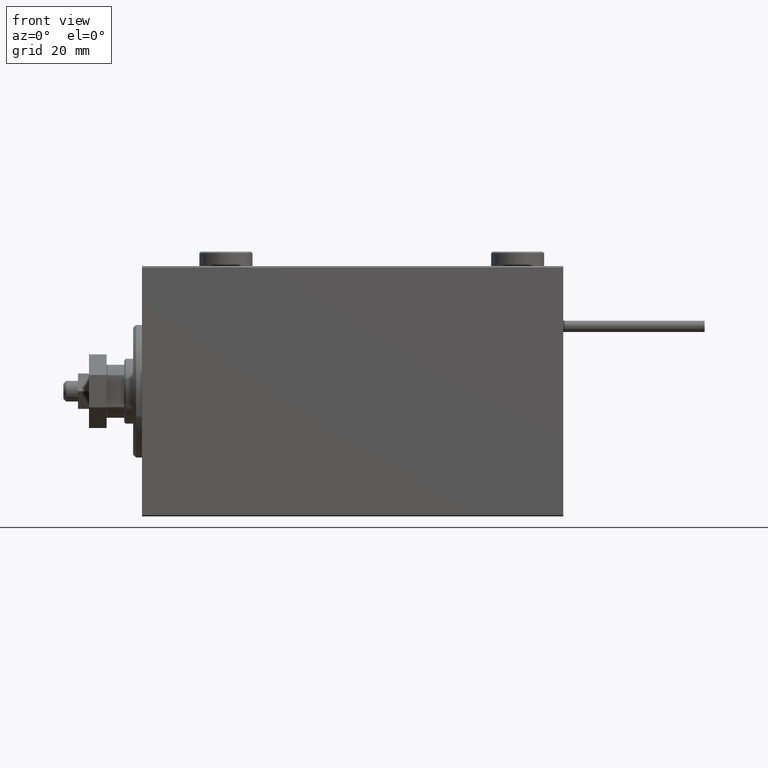
[diagram: clean part render]
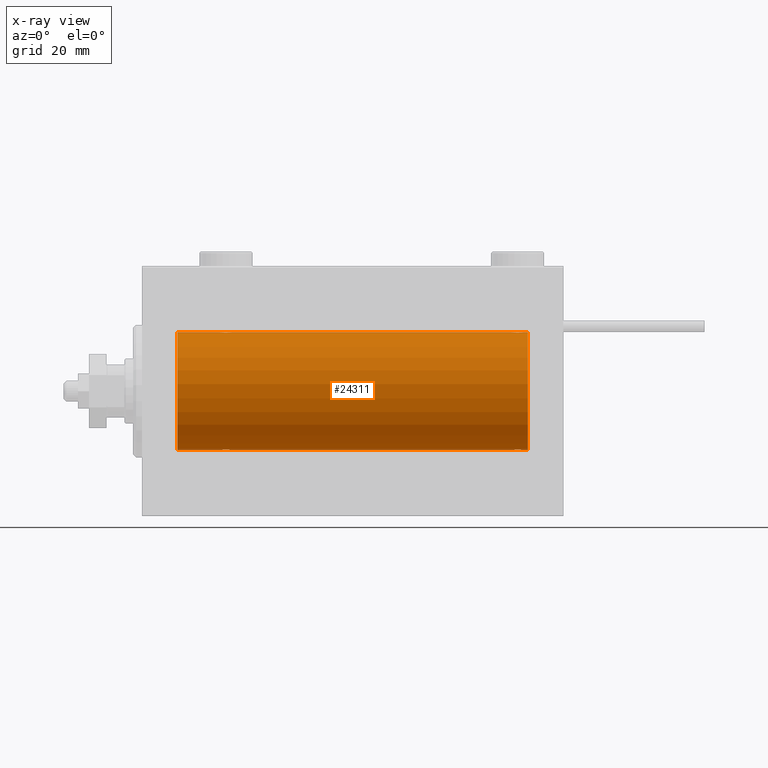
[diagram: x-ray — body ghosted, one internal face saturated and labeled with its STEP entity id]
A machine part, front view, then the same camera in x-ray: the body is ghosted and one INTERNAL B-rep face — a face not visible from any outside direction — is saturated and labeled: STEP entity #24311.
In plain terms, the highlighted cylindrical surface (partial cylindrical patch) has radius 20 mm, axis along (-1, -0, -0).
Its self-contained STEP definition (entity closure, byte-faithful):
#229 = CARTESIAN_POINT ( 'NONE',  ( 128.1463067392464552, -1.897222639860601801, -19.90987429971496425 ) ) ;
#505 = CARTESIAN_POINT ( 'NONE',  ( 129.5000000000000000, 2.449293582762473501E-15, -20.00000000000000000 ) ) ;
#914 = CARTESIAN_POINT ( 'NONE',  ( 27.98351467081095123, -1.936551476643008529, -19.90603968831098314 ) ) ;
#1055 = LINE ( 'NONE', #29190, #49886 ) ;
#1176 = CARTESIAN_POINT ( 'NONE',  ( 28.23922743968432414, -1.987205673487811630, -19.90104673894211018 ) ) ;
#1274 = CARTESIAN_POINT ( 'NONE',  ( 126.6142092332926978, -1.797933656607922259, -19.91908554465557657 ) ) ;
#2151 = DIRECTION ( 'NONE',  ( -1.000000000000000000, -0.000000000000000000, -0.000000000000000000 ) ) ;
#2357 = CARTESIAN_POINT ( 'NONE',  ( 27.61170562792909777, -1.796691196322324213, 19.91919800395357498 ) ) ;
#2896 = CARTESIAN_POINT ( 'NONE',  ( 126.1769333108053388, -1.505486175075782196, 19.94347168299868045 ) ) ;
#3102 = ORIENTED_EDGE ( 'NONE', *, *, #35558, .T. ) ;
#4055 = CARTESIAN_POINT ( 'NONE',  ( 30.24825913460018256, -1.005710574260840096, -19.97614991974273835 ) ) ;
#4148 = CARTESIAN_POINT ( 'NONE',  ( 127.3694112828916758, -2.000100592782560582, -19.89973863218036243 ) ) ;
#4415 = CARTESIAN_POINT ( 'NONE',  ( 125.7531302369692696, -1.008108445278684595, -19.97602680192585822 ) ) ;
#4680 = CARTESIAN_POINT ( 'NONE',  ( 126.1790309315271088, -1.507328959728501783, -19.94333197382385592 ) ) ;
#4980 = ORIENTED_EDGE ( 'NONE', *, *, #50105, .T. ) ;
#5168 = ORIENTED_EDGE ( 'NONE', *, *, #30195, .T. ) ;
#5185 = CARTESIAN_POINT ( 'NONE',  ( 129.4475506288250983, -0.5243189001515025094, -19.99457699142850231 ) ) ;
#5392 = EDGE_CURVE ( 'NONE', #6117, #34077, #34350, .T. ) ;
#5667 = VECTOR ( 'NONE', #2151, 1000.000000000000000 ) ;
#5741 = B_SPLINE_CURVE_WITH_KNOTS ( 'NONE', 3,
 ( #46424, #42509, #22707, #38613, #49561, #2896, #29753, #49817, #26101, #42000, #50588, #14880, #6298, #45644, #9931, #20062, #19811, #7830, #19553, #26882, #15897, #27633, #43788, #35203, #46932, #11720 ),
 .UNSPECIFIED., .F., .F.,
 ( 4, 2, 2, 2, 2, 2, 2, 2, 2, 2, 2, 2, 4 ),
 ( 0.006256819553329832743, 0.007038738568778792407, 0.007820657584227751202, 0.008211617091952231468, 0.008602576599676711733, 0.008993536107401190263, 0.009384495615125668794, 0.009775455122850149059, 0.01016641463057462759, 0.01055737413829910612, 0.01094833364602358639, 0.01173025266147260243, 0.01251217167692161847 ),
 .UNSPECIFIED. ) ;
#5993 = EDGE_CURVE ( 'NONE', #21122, #6646, #34576, .T. ) ;
#6006 = CARTESIAN_POINT ( 'NONE',  ( 27.49693443660398273, -1.735203193119900344, 19.92471783160911158 ) ) ;
#6117 = VERTEX_POINT ( 'NONE', #29924 ) ;
#6190 = VECTOR ( 'NONE', #50602, 1000.000000000000000 ) ;
#6298 = CARTESIAN_POINT ( 'NONE',  ( 127.3663480385754667, -1.999898234284065657, 19.89975896996866211 ) ) ;
#6646 = VERTEX_POINT ( 'NONE', #19058 ) ;
#7830 = CARTESIAN_POINT ( 'NONE',  ( 128.3857907667073448, -1.797933656607917152, 19.91908554465558367 ) ) ;
#7967 = CARTESIAN_POINT ( 'NONE',  ( 27.28194580527850022, -1.591668229360200026, -19.93669678979812687 ) ) ;
#8221 = CARTESIAN_POINT ( 'NONE',  ( 28.76358144091414815, -1.986835489085816198, -19.90108393514801222 ) ) ;
#8310 = CARTESIAN_POINT ( 'NONE',  ( 126.8565147126695933, -1.898187925611344085, -19.90978194174746818 ) ) ;
#8456 = B_SPLINE_CURVE_WITH_KNOTS ( 'NONE', 3,
 ( #18771, #41706, #46642, #34415, #26853, #22418, #18251, #6006, #2357, #34153, #41970, #38077, #33901, #10685, #26071, #14332, #26335, #14600, #38324, #14074, #38586, #18512, #22943, #30235, #34674, #38844 ),
 .UNSPECIFIED., .F., .F.,
 ( 4, 2, 2, 2, 2, 2, 2, 2, 2, 2, 2, 2, 4 ),
 ( 0.006256819553329818866, 0.007038738568778795009, 0.007820657584227770284, 0.008211617091952255754, 0.008602576599676739488, 0.008993536107401223223, 0.009384495615125706958, 0.009775455122850190692, 0.01016641463057467443, 0.01055737413829915816, 0.01094833364602364190, 0.01173025266147261110, 0.01251217167692157857 ),
 .UNSPECIFIED. ) ;
#8727 = EDGE_CURVE ( 'NONE', #6117, #36204, #5741, .T. ) ;
#9092 = CARTESIAN_POINT ( 'NONE',  ( 127.6336519614245049, -1.999898234284069876, -19.89975896996866211 ) ) ;
#9818 = ORIENTED_EDGE ( 'NONE', *, *, #17673, .F. ) ;
#9931 = CARTESIAN_POINT ( 'NONE',  ( 127.7607725603157007, -1.987205673487809854, 19.90104673894210308 ) ) ;
#9971 = VERTEX_POINT ( 'NONE', #34149 ) ;
#10685 = CARTESIAN_POINT ( 'NONE',  ( 28.63058871710834552, -2.000100592782559250, 19.89973863218036598 ) ) ;
#11720 = CARTESIAN_POINT ( 'NONE',  ( 129.5000000000000000, 6.438096668033870730E-15, 20.00000000000000000 ) ) ;
#11975 = DIRECTION ( 'NONE',  ( -1.000000000000000000, -0.000000000000000000, -0.000000000000000000 ) ) ;
#12640 = CARTESIAN_POINT ( 'NONE',  ( 26.50000000000000355, -6.257798774011376898E-15, -20.00000000000000000 ) ) ;
#12740 = CARTESIAN_POINT ( 'NONE',  ( 129.0994152488403302, -1.228758402364245494, -19.96307487248085266 ) ) ;
#13161 = CARTESIAN_POINT ( 'NONE',  ( 27.61420923329272981, -1.797933656607920039, -19.91908554465558367 ) ) ;
#13356 = EDGE_CURVE ( 'NONE', #6646, #27483, #36847, .T. ) ;
#13473 = CARTESIAN_POINT ( 'NONE',  ( 26.50000000000000355, -1.552596590610734385E-23, 20.00000000000000000 ) ) ;
#14074 = CARTESIAN_POINT ( 'NONE',  ( 29.71805419472152110, -1.591668229360197806, 19.93669678979812687 ) ) ;
#14236 = AXIS2_PLACEMENT_3D ( 'NONE', #17933, #14538, #26274 ) ;
#14332 = CARTESIAN_POINT ( 'NONE',  ( 29.01648532918905232, -1.936551476643010528, 19.90603968831098314 ) ) ;
#14535 = CARTESIAN_POINT ( 'NONE',  ( 131.0000000000000000, 0.000000000000000000, 20.00000000000000000 ) ) ;
#14538 = DIRECTION ( 'NONE',  ( -1.000000000000000000, -0.000000000000000000, -0.000000000000000000 ) ) ;
#14600 = CARTESIAN_POINT ( 'NONE',  ( 29.38579076670728440, -1.797933656607920261, 19.91908554465558367 ) ) ;
#14880 = CARTESIAN_POINT ( 'NONE',  ( 127.2364185590859051, -1.986835489085821527, 19.90108393514801932 ) ) ;
#15888 = CARTESIAN_POINT ( 'NONE',  ( 131.0000000000000000, 2.449293598294706513E-15, -20.00000000000000000 ) ) ;
#15897 = CARTESIAN_POINT ( 'NONE',  ( 128.8209690684728912, -1.507328959728495121, 19.94333197382385592 ) ) ;
#16039 = CARTESIAN_POINT ( 'NONE',  ( 29.01923512135277150, -1.935816449315127308, -19.90611141657401362 ) ) ;
#16301 = CARTESIAN_POINT ( 'NONE',  ( 30.50000000000000000, -0.2610801504281901053, -20.00000000000000000 ) ) ;
#16401 = CARTESIAN_POINT ( 'NONE',  ( 128.7202894579446593, -1.589957321664221324, -19.93683391378736403 ) ) ;
#16558 = CARTESIAN_POINT ( 'NONE',  ( 26.55320515808203297, -0.5270924491156746550, -19.99450181871975829 ) ) ;
#17076 = CARTESIAN_POINT ( 'NONE',  ( 27.17903093152711591, -1.507328959728495787, -19.94333197382386302 ) ) ;
#17174 = CARTESIAN_POINT ( 'NONE',  ( 125.5532051580820223, -0.5270924491156693259, -19.99450181871975474 ) ) ;
#17262 = DIRECTION ( 'NONE',  ( -1.000000000000000000, 0.000000000000000000, 0.000000000000000000 ) ) ;
#17673 = EDGE_CURVE ( 'NONE', #27399, #31109, #1055, .T. ) ;
#17933 = CARTESIAN_POINT ( 'NONE',  ( 131.0000000000000000, 0.000000000000000000, 0.000000000000000000 ) ) ;
#18251 = CARTESIAN_POINT ( 'NONE',  ( 27.27971054205535495, -1.589957321664213552, 19.93683391378736047 ) ) ;
#18512 = CARTESIAN_POINT ( 'NONE',  ( 30.09774691554730808, -1.230936344679279593, 19.96293863536309487 ) ) ;
#18525 = EDGE_LOOP ( 'NONE', ( #39358, #39978, #33164, #50762, #42488, #4980, #5168, #9818, #3102, #51502, #48575, #23788 ) ) ;
#18771 = CARTESIAN_POINT ( 'NONE',  ( 26.50000000000000355, -1.552596590610734385E-23, 20.00000000000000000 ) ) ;
#19058 = CARTESIAN_POINT ( 'NONE',  ( 125.5000000000000000, -8.073198165226647480E-15, -20.00000000000000000 ) ) ;
#19553 = CARTESIAN_POINT ( 'NONE',  ( 128.5006721913924252, -1.736582545981380177, 19.92459705242980661 ) ) ;
#19811 = CARTESIAN_POINT ( 'NONE',  ( 128.1434852873304351, -1.898187925611338978, 19.90978194174746818 ) ) ;
#20062 = CARTESIAN_POINT ( 'NONE',  ( 128.0164853291890950, -1.936551476643003200, 19.90603968831099024 ) ) ;
#20305 = CARTESIAN_POINT ( 'NONE',  ( 125.5000000000000000, -8.073198165226647480E-15, -20.00000000000000000 ) ) ;
#21080 = CARTESIAN_POINT ( 'NONE',  ( 126.4993278086076174, -1.736582545981386394, -19.92459705242980661 ) ) ;
#21122 = VERTEX_POINT ( 'NONE', #43833 ) ;
#21934 = DIRECTION ( 'NONE',  ( 0.000000000000000000, 0.000000000000000000, 1.000000000000000000 ) ) ;
#22418 = CARTESIAN_POINT ( 'NONE',  ( 27.17693331080529973, -1.505486175075776645, 19.94347168299866979 ) ) ;
#22707 = CARTESIAN_POINT ( 'NONE',  ( 125.5524493711749301, -0.5243189001515030645, 19.99457699142850231 ) ) ;
#22839 = DIRECTION ( 'NONE',  ( -1.000000000000000000, 0.000000000000000000, 0.000000000000000000 ) ) ;
#22943 = CARTESIAN_POINT ( 'NONE',  ( 30.24686976303072328, -1.008108445278688148, 19.97602680192586533 ) ) ;
#23788 = ORIENTED_EDGE ( 'NONE', *, *, #37445, .F. ) ;
#24311 = ADVANCED_FACE ( 'NONE', ( #37494 ), #34352, .F. ) ;
#24515 = DIRECTION ( 'NONE',  ( -1.000000000000000000, -0.000000000000000000, -0.000000000000000000 ) ) ;
#25079 = CARTESIAN_POINT ( 'NONE',  ( 11.99999999999999645, 0.000000000000000000, 0.000000000000000000 ) ) ;
#25298 = CIRCLE ( 'NONE', #37803, 20.00000000000000000 ) ;
#25828 = LINE ( 'NONE', #46157, #37534 ) ;
#25909 = AXIS2_PLACEMENT_3D ( 'NONE', #43143, #22839, #43649 ) ;
#26071 = CARTESIAN_POINT ( 'NONE',  ( 28.76077256031568652, -1.987205673487814739, 19.90104673894211018 ) ) ;
#26101 = CARTESIAN_POINT ( 'NONE',  ( 126.6117056279290551, -1.796691196322318218, 19.91919800395357143 ) ) ;
#26274 = DIRECTION ( 'NONE',  ( 0.000000000000000000, 0.000000000000000000, 1.000000000000000000 ) ) ;
#26335 = CARTESIAN_POINT ( 'NONE',  ( 29.14348528733042443, -1.898187925611342974, 19.90978194174746818 ) ) ;
#26853 = CARTESIAN_POINT ( 'NONE',  ( 26.90058475115969827, -1.228758402364238833, 19.96307487248084911 ) ) ;
#26882 = CARTESIAN_POINT ( 'NONE',  ( 128.7180541947215033, -1.591668229360202025, 19.93669678979812332 ) ) ;
#27365 = LINE ( 'NONE', #15888, #28486 ) ;
#27399 = VERTEX_POINT ( 'NONE', #13473 ) ;
#27483 = VERTEX_POINT ( 'NONE', #46308 ) ;
#27633 = CARTESIAN_POINT ( 'NONE',  ( 129.0977469155473329, -1.230936344679282257, 19.96293863536309843 ) ) ;
#28132 = CARTESIAN_POINT ( 'NONE',  ( 128.3882943720709591, -1.796691196322323991, -19.91919800395357854 ) ) ;
#28486 = VECTOR ( 'NONE', #11975, 1000.000000000000000 ) ;
#28552 = CARTESIAN_POINT ( 'NONE',  ( 28.36941128289166514, -2.000100592782555697, -19.89973863218036598 ) ) ;
#28649 = CARTESIAN_POINT ( 'NONE',  ( 125.5000000000000000, -0.2644051013331143452, -19.99999999999999645 ) ) ;
#28905 = CARTESIAN_POINT ( 'NONE',  ( 128.5030655633960350, -1.735203193119907006, -19.92471783160911514 ) ) ;
#29155 = CARTESIAN_POINT ( 'NONE',  ( 126.9835146708109050, -1.936551476643007197, -19.90603968831098669 ) ) ;
#29190 = CARTESIAN_POINT ( 'NONE',  ( 131.0000000000000000, 0.000000000000000000, 20.00000000000000000 ) ) ;
#29693 = CARTESIAN_POINT ( 'NONE',  ( 11.99999999999999645, 2.449293598294706513E-15, -20.00000000000000000 ) ) ;
#29753 = CARTESIAN_POINT ( 'NONE',  ( 126.2797105420553407, -1.589957321664216661, 19.93683391378736403 ) ) ;
#29924 = CARTESIAN_POINT ( 'NONE',  ( 125.5000000000000000, -1.553188236289650144E-23, 20.00000000000000000 ) ) ;
#30195 = EDGE_CURVE ( 'NONE', #30587, #31109, #25298, .T. ) ;
#30235 = CARTESIAN_POINT ( 'NONE',  ( 30.44679484191798124, -0.5270924491156695479, 19.99450181871975829 ) ) ;
#30531 = CARTESIAN_POINT ( 'NONE',  ( 11.99999999999999645, 0.000000000000000000, 20.00000000000000000 ) ) ;
#30587 = VERTEX_POINT ( 'NONE', #29693 ) ;
#30690 = DIRECTION ( 'NONE',  ( -1.000000000000000000, -0.000000000000000000, -0.000000000000000000 ) ) ;
#31109 = VERTEX_POINT ( 'NONE', #30531 ) ;
#31304 = CARTESIAN_POINT ( 'NONE',  ( 131.0000000000000000, 2.449293598294706513E-15, -20.00000000000000000 ) ) ;
#32010 = VECTOR ( 'NONE', #30690, 1000.000000000000000 ) ;
#32202 = CARTESIAN_POINT ( 'NONE',  ( 29.38829437207092354, -1.796691196322319994, -19.91919800395357498 ) ) ;
#32301 = CARTESIAN_POINT ( 'NONE',  ( 127.2392274396842993, -1.987205673487814295, -19.90104673894210308 ) ) ;
#32455 = CARTESIAN_POINT ( 'NONE',  ( 28.63365196142447644, -1.999898234284065657, -19.89975896996865856 ) ) ;
#32984 = CARTESIAN_POINT ( 'NONE',  ( 26.75313023696928738, -1.008108445278691478, -19.97602680192586533 ) ) ;
#33164 = ORIENTED_EDGE ( 'NONE', *, *, #5993, .T. ) ;
#33901 = CARTESIAN_POINT ( 'NONE',  ( 28.36634803857551290, -1.999898234284068321, 19.89975896996865856 ) ) ;
#34077 = VERTEX_POINT ( 'NONE', #49037 ) ;
#34149 = CARTESIAN_POINT ( 'NONE',  ( 131.0000000000000000, 2.449293598294706513E-15, -20.00000000000000000 ) ) ;
#34153 = CARTESIAN_POINT ( 'NONE',  ( 27.85369326075355190, -1.897222639860601578, 19.90987429971495715 ) ) ;
#34350 = LINE ( 'NONE', #14535, #32010 ) ;
#34352 = CYLINDRICAL_SURFACE ( 'NONE', #14236, 20.00000000000000000 ) ;
#34415 = CARTESIAN_POINT ( 'NONE',  ( 26.75174086539980678, -1.005710574260844092, 19.97614991974273835 ) ) ;
#34576 = B_SPLINE_CURVE_WITH_KNOTS ( 'NONE', 3,
 ( #505, #40895, #5185, #36994, #12740, #44015, #16401, #28905, #28132, #229, #44802, #48448, #9092, #4148, #32301, #29155, #8310, #1274, #21080, #40376, #4680, #35954, #4415, #17174, #28649, #20305 ),
 .UNSPECIFIED., .F., .F.,
 ( 4, 2, 2, 2, 2, 2, 2, 2, 2, 2, 2, 2, 4 ),
 ( 0.006256819553329823203, 0.007038738568778736028, 0.007820657584227648854, 0.008211617091952134323, 0.008602576599676619792, 0.008993536107401105262, 0.009384495615125590731, 0.009775455122850076201, 0.01016641463057456340, 0.01055737413829904714, 0.01094833364602353434, 0.01173025266147256426, 0.01251217167692159418 ),
 .UNSPECIFIED. ) ;
#34674 = CARTESIAN_POINT ( 'NONE',  ( 30.50000000000000000, -0.2644051013330992461, 19.99999999999999645 ) ) ;
#34854 = VERTEX_POINT ( 'NONE', #45396 ) ;
#35203 = CARTESIAN_POINT ( 'NONE',  ( 129.4467948419180061, -0.5270924491156583347, 19.99450181871976184 ) ) ;
#35558 = EDGE_CURVE ( 'NONE', #27399, #34077, #8456, .T. ) ;
#35859 = CARTESIAN_POINT ( 'NONE',  ( 30.09941524884030528, -1.228758402364235724, -19.96307487248084911 ) ) ;
#35954 = CARTESIAN_POINT ( 'NONE',  ( 125.9022530844527381, -1.230936344679288252, -19.96293863536308422 ) ) ;
#36204 = VERTEX_POINT ( 'NONE', #41592 ) ;
#36637 = CARTESIAN_POINT ( 'NONE',  ( 29.50306556339602082, -1.735203193119896348, -19.92471783160911158 ) ) ;
#36847 = LINE ( 'NONE', #41005, #5667 ) ;
#36893 = CARTESIAN_POINT ( 'NONE',  ( 29.14630673924644100, -1.897222639860597360, -19.90987429971497136 ) ) ;
#36994 = CARTESIAN_POINT ( 'NONE',  ( 129.2482591346002039, -1.005710574260843870, -19.97614991974274190 ) ) ;
#37330 = DIRECTION ( 'NONE',  ( -1.000000000000000000, -0.000000000000000000, -0.000000000000000000 ) ) ;
#37445 = EDGE_CURVE ( 'NONE', #44862, #36204, #25828, .T. ) ;
#37494 = FACE_OUTER_BOUND ( 'NONE', #18525, .T. ) ;
#37534 = VECTOR ( 'NONE', #37330, 1000.000000000000000 ) ;
#37803 = AXIS2_PLACEMENT_3D ( 'NONE', #25079, #17262, #21934 ) ;
#38059 = B_SPLINE_CURVE_WITH_KNOTS ( 'NONE', 3,
 ( #48347, #16301, #43659, #4055, #35859, #43920, #48609, #36637, #32202, #36893, #16039, #8221, #32455, #28552, #1176, #914, #40015, #13161, #48089, #7967, #17076, #40788, #32984, #16558, #39762, #12640 ),
 .UNSPECIFIED., .F., .F.,
 ( 4, 2, 2, 2, 2, 2, 2, 2, 2, 2, 2, 2, 4 ),
 ( 0.006256819553329837948, 0.007038738568778813223, 0.007820657584227789366, 0.008211617091952273101, 0.008602576599676756836, 0.008993536107401240570, 0.009384495615125724305, 0.009775455122850208040, 0.01016641463057469177, 0.01055737413829917551, 0.01094833364602365924, 0.01173025266147262498, 0.01251217167692159245 ),
 .UNSPECIFIED. ) ;
#38077 = CARTESIAN_POINT ( 'NONE',  ( 28.23641855908585541, -1.986835489085820194, 19.90108393514801222 ) ) ;
#38324 = CARTESIAN_POINT ( 'NONE',  ( 29.50067219139245367, -1.736582545981377734, 19.92459705242981371 ) ) ;
#38586 = CARTESIAN_POINT ( 'NONE',  ( 29.82096906847290896, -1.507328959728495121, 19.94333197382386302 ) ) ;
#38613 = CARTESIAN_POINT ( 'NONE',  ( 125.7517408653998103, -1.005710574260844758, 19.97614991974274190 ) ) ;
#38844 = CARTESIAN_POINT ( 'NONE',  ( 30.50000000000000000, -9.453669475664189070E-16, 20.00000000000000000 ) ) ;
#39358 = ORIENTED_EDGE ( 'NONE', *, *, #42429, .F. ) ;
#39560 = CARTESIAN_POINT ( 'NONE',  ( 131.0000000000000000, 0.000000000000000000, 20.00000000000000000 ) ) ;
#39762 = CARTESIAN_POINT ( 'NONE',  ( 26.50000000000000711, -0.2644051013331055744, -19.99999999999999645 ) ) ;
#39952 = EDGE_CURVE ( 'NONE', #27483, #34854, #38059, .T. ) ;
#39978 = ORIENTED_EDGE ( 'NONE', *, *, #44640, .T. ) ;
#40015 = CARTESIAN_POINT ( 'NONE',  ( 27.85651471266958978, -1.898187925611340976, -19.90978194174746818 ) ) ;
#40376 = CARTESIAN_POINT ( 'NONE',  ( 126.2819458052784398, -1.591668229360208242, -19.93669678979812687 ) ) ;
#40788 = CARTESIAN_POINT ( 'NONE',  ( 26.90225308445270613, -1.230936344679281369, -19.96293863536309487 ) ) ;
#40895 = CARTESIAN_POINT ( 'NONE',  ( 129.5000000000000568, -0.2610801504281894392, -20.00000000000000000 ) ) ;
#41005 = CARTESIAN_POINT ( 'NONE',  ( 131.0000000000000000, 2.449293598294706513E-15, -20.00000000000000000 ) ) ;
#41592 = CARTESIAN_POINT ( 'NONE',  ( 129.5000000000000000, 6.438096668033870730E-15, 20.00000000000000000 ) ) ;
#41706 = CARTESIAN_POINT ( 'NONE',  ( 26.50000000000001421, -0.2610801504281932695, 20.00000000000000000 ) ) ;
#41970 = CARTESIAN_POINT ( 'NONE',  ( 27.98076487864723561, -1.935816449315131749, 19.90611141657401362 ) ) ;
#42000 = CARTESIAN_POINT ( 'NONE',  ( 126.8536932607535732, -1.897222639860597360, 19.90987429971496780 ) ) ;
#42429 = EDGE_CURVE ( 'NONE', #9971, #44862, #48381, .T. ) ;
#42488 = ORIENTED_EDGE ( 'NONE', *, *, #39952, .T. ) ;
#42509 = CARTESIAN_POINT ( 'NONE',  ( 125.5000000000000000, -0.2610801504281917151, 20.00000000000000000 ) ) ;
#42784 = LINE ( 'NONE', #31304, #6190 ) ;
#43143 = CARTESIAN_POINT ( 'NONE',  ( 131.0000000000000000, 0.000000000000000000, 0.000000000000000000 ) ) ;
#43649 = DIRECTION ( 'NONE',  ( 0.000000000000000000, 0.000000000000000000, 1.000000000000000000 ) ) ;
#43659 = CARTESIAN_POINT ( 'NONE',  ( 30.44755062882508412, -0.5243189001515006220, -19.99457699142850231 ) ) ;
#43788 = CARTESIAN_POINT ( 'NONE',  ( 129.2468697630307304, -1.008108445278674825, 19.97602680192586888 ) ) ;
#43833 = CARTESIAN_POINT ( 'NONE',  ( 129.5000000000000000, 2.449293582762473501E-15, -20.00000000000000000 ) ) ;
#43920 = CARTESIAN_POINT ( 'NONE',  ( 29.82306668919470027, -1.505486175075773314, -19.94347168299866979 ) ) ;
#44015 = CARTESIAN_POINT ( 'NONE',  ( 128.8230666891947180, -1.505486175075785527, -19.94347168299868400 ) ) ;
#44640 = EDGE_CURVE ( 'NONE', #9971, #21122, #27365, .T. ) ;
#44802 = CARTESIAN_POINT ( 'NONE',  ( 128.0192351213527786, -1.935816449315133081, -19.90611141657401362 ) ) ;
#44862 = VERTEX_POINT ( 'NONE', #39560 ) ;
#45396 = CARTESIAN_POINT ( 'NONE',  ( 26.50000000000000355, -6.257798774011376898E-15, -20.00000000000000000 ) ) ;
#45644 = CARTESIAN_POINT ( 'NONE',  ( 127.6305887171083668, -2.000100592782557474, 19.89973863218036243 ) ) ;
#46157 = CARTESIAN_POINT ( 'NONE',  ( 131.0000000000000000, 0.000000000000000000, 20.00000000000000000 ) ) ;
#46308 = CARTESIAN_POINT ( 'NONE',  ( 30.50000000000000000, 2.449293582768389958E-15, -20.00000000000000000 ) ) ;
#46424 = CARTESIAN_POINT ( 'NONE',  ( 125.5000000000000000, -1.553188236289650144E-23, 20.00000000000000000 ) ) ;
#46642 = CARTESIAN_POINT ( 'NONE',  ( 26.55244937117491943, -0.5243189001515041747, 19.99457699142850231 ) ) ;
#46932 = CARTESIAN_POINT ( 'NONE',  ( 129.5000000000000568, -0.2644051013331001343, 20.00000000000000711 ) ) ;
#48089 = CARTESIAN_POINT ( 'NONE',  ( 27.49932780860757475, -1.736582545981378845, -19.92459705242981371 ) ) ;
#48347 = CARTESIAN_POINT ( 'NONE',  ( 30.50000000000000000, 2.449293582768389958E-15, -20.00000000000000000 ) ) ;
#48381 = CIRCLE ( 'NONE', #25909, 20.00000000000000000 ) ;
#48448 = CARTESIAN_POINT ( 'NONE',  ( 127.7635814409141517, -1.986835489085821527, -19.90108393514801577 ) ) ;
#48575 = ORIENTED_EDGE ( 'NONE', *, *, #8727, .T. ) ;
#48609 = CARTESIAN_POINT ( 'NONE',  ( 29.72028945794465216, -1.589957321664210665, -19.93683391378736047 ) ) ;
#49037 = CARTESIAN_POINT ( 'NONE',  ( 30.50000000000000000, -9.453669475664189070E-16, 20.00000000000000000 ) ) ;
#49561 = CARTESIAN_POINT ( 'NONE',  ( 125.9005847511597551, -1.228758402364247049, 19.96307487248084911 ) ) ;
#49817 = CARTESIAN_POINT ( 'NONE',  ( 126.4969344366040076, -1.735203193119901455, 19.92471783160911158 ) ) ;
#49886 = VECTOR ( 'NONE', #24515, 1000.000000000000000 ) ;
#50105 = EDGE_CURVE ( 'NONE', #34854, #30587, #42784, .T. ) ;
#50588 = CARTESIAN_POINT ( 'NONE',  ( 126.9807648786472640, -1.935816449315135523, 19.90611141657401006 ) ) ;
#50602 = DIRECTION ( 'NONE',  ( -1.000000000000000000, -0.000000000000000000, -0.000000000000000000 ) ) ;
#50762 = ORIENTED_EDGE ( 'NONE', *, *, #13356, .T. ) ;
#51502 = ORIENTED_EDGE ( 'NONE', *, *, #5392, .F. ) ;